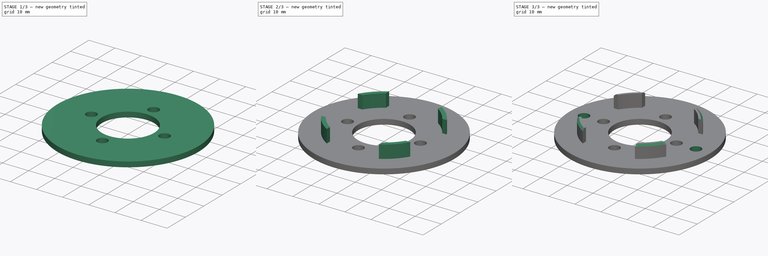
[diagram: build sequence overview — one tinted view per stage of 3, left to right]
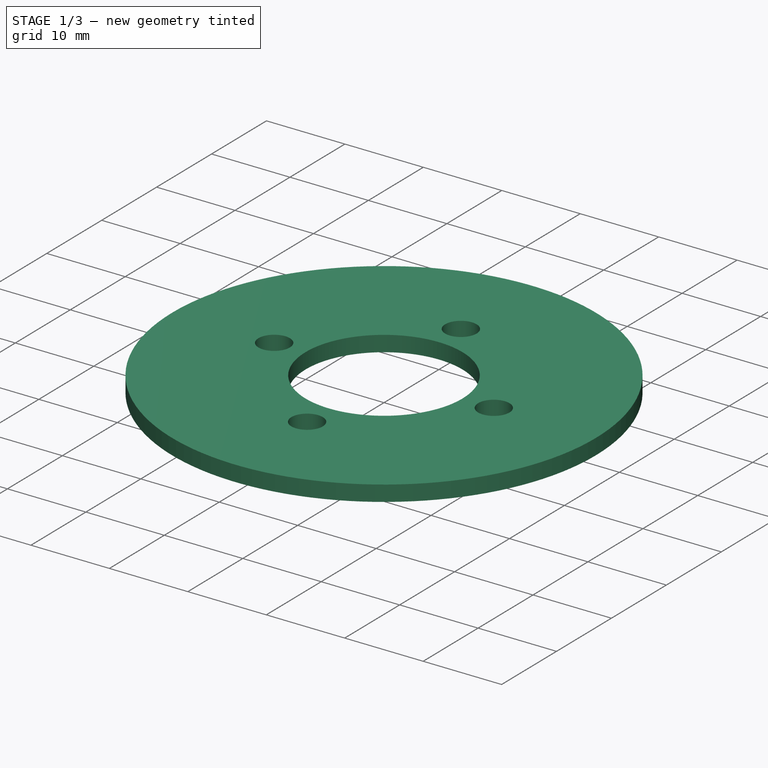
[diagram: stage 1 of 3 — iso view after this stage's code; geometry added in this stage tinted green]
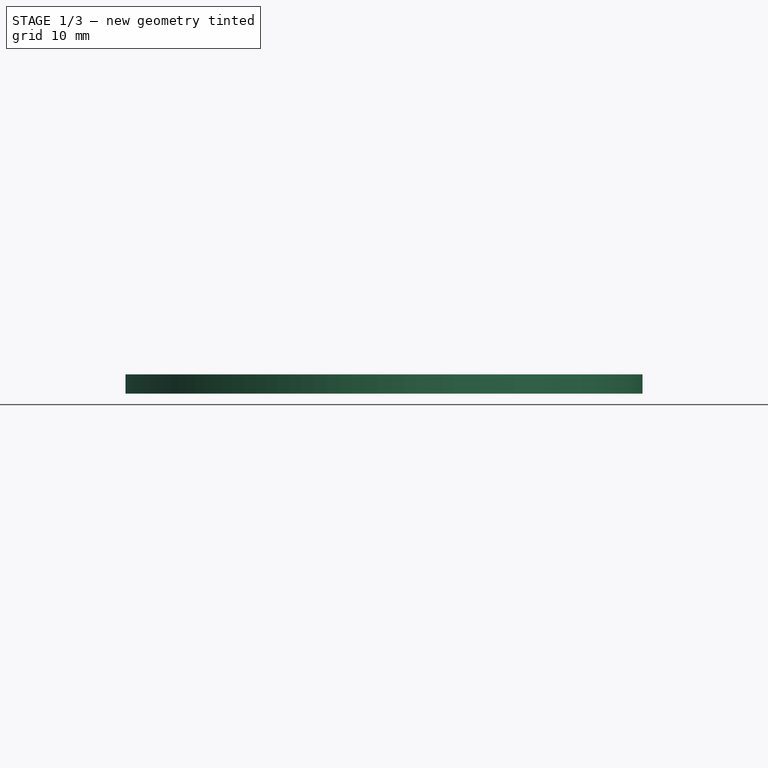
[diagram: stage 1 of 3 — front view after this stage's code; geometry added in this stage tinted green]
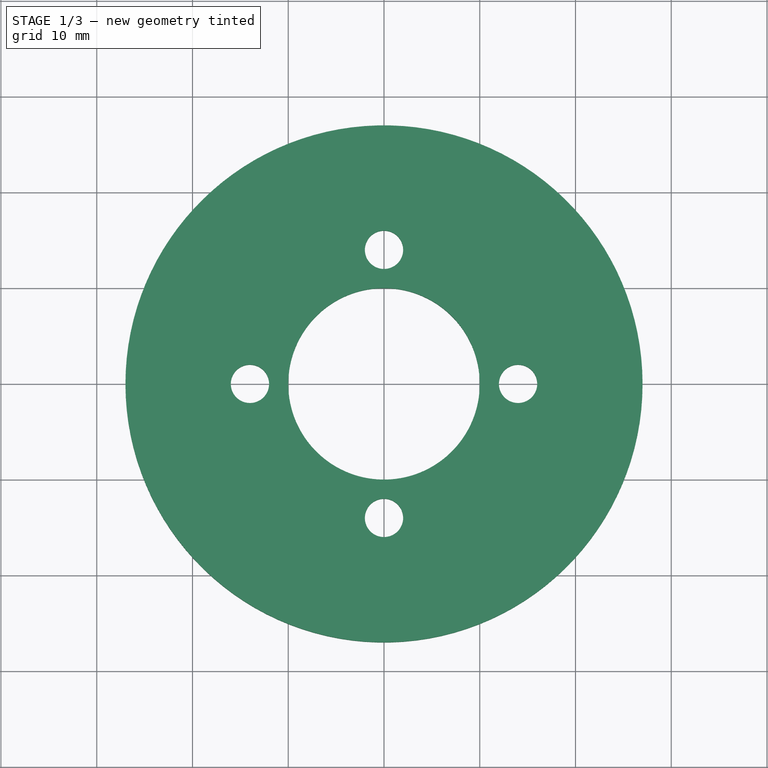
[diagram: stage 1 of 3 — top view after this stage's code; geometry added in this stage tinted green]
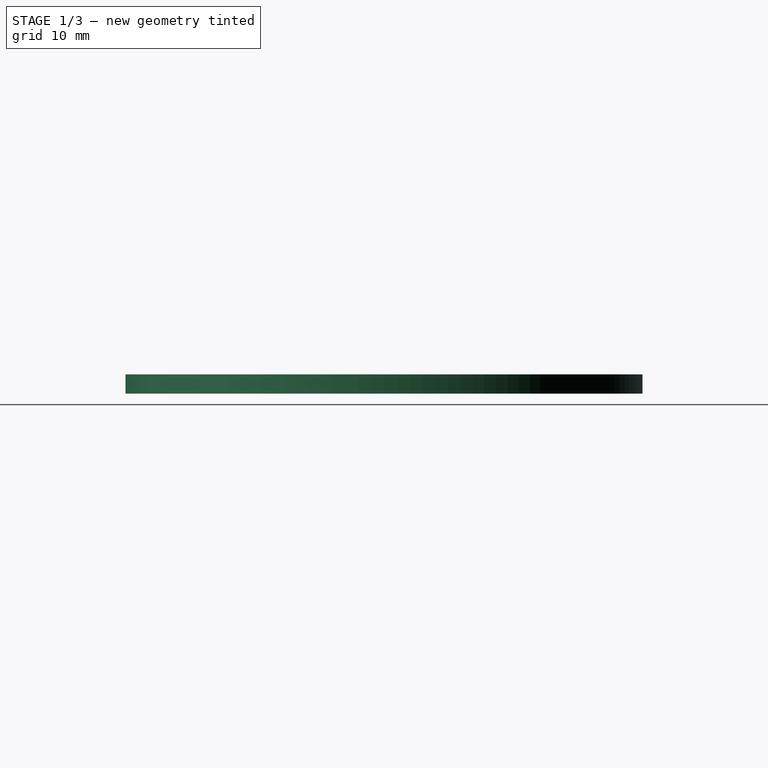
[diagram: stage 1 of 3 — right view after this stage's code; geometry added in this stage tinted green]
FCSTD DOCUMENT  (FreeCAD 0.19R24276 (Git))
Label: support_for_2_gears_14t
License: All rights reserved
LicenseURL: http://en.wikipedia.org/wiki/All_rights_reserved
objects: Sketcher::SketchObject×5, PartDesign::Pocket×3, PartDesign::Pad×2, PartDesign::Chamfer×1, PartDesign::Body×1
note: 18 computed .brp shape members not serialized (recipe doc carries the construction recipe); baked Part::Feature solids carry a one-line shape summary decoded from their .brp

FEATURE [Sketcher::SketchObject] Sketch
  FullyConstrained = true
  MapMode = 5
  Support = -> [XY_Plane]
  sketch-geometry (2):
    g0: Circle CenterX=0 CenterY=0 CenterZ=0 NormalX=0 NormalY=0 NormalZ=1 AngleXU=0 Radius=27
    g1: Circle CenterX=0 CenterY=0 CenterZ=0 NormalX=0 NormalY=0 NormalZ=1 AngleXU=0 Radius=10
  constraints (4):
    c: Coincident(g0,g-1)
    c: Diameter(g0) = 54
    c: Coincident(g1,g0)
    c: Diameter(g1) = 20
FEATURE [PartDesign::Pad] Pad
  Direction = (1,1,1)
  Length = 2
  Length2 = 100
  Profile = -> Sketch
  Type = 0
FEATURE [Sketcher::SketchObject] Sketch001
  FullyConstrained = false
  MapMode = 5
  Placement = pos=(0,0,2) rot=(0,0,1;0rad)
  Support = -> [Pad]
  sketch-geometry (9):
    g0: Circle CenterX=0 CenterY=0 CenterZ=0 NormalX=0 NormalY=0 NormalZ=1 AngleXU=0 Radius=14
    g1: LineSegment StartX=0 StartY=0 StartZ=0 EndX=0 EndY=14 EndZ=0
    g2: LineSegment StartX=0 StartY=0 StartZ=0 EndX=14 EndY=0 EndZ=0
    g3: LineSegment StartX=0 StartY=0 StartZ=0 EndX=0 EndY=-14 EndZ=0
    g4: LineSegment StartX=0 StartY=0 StartZ=0 EndX=-14 EndY=0 EndZ=0
    g5: Circle CenterX=0 CenterY=14 CenterZ=0 NormalX=0 NormalY=0 NormalZ=1 AngleXU=0 Radius=2
    g6: Circle CenterX=14 CenterY=0 CenterZ=0 NormalX=0 NormalY=0 NormalZ=1 AngleXU=0 Radius=2
    g7: Circle CenterX=0 CenterY=-14 CenterZ=0 NormalX=0 NormalY=0 NormalZ=1 AngleXU=0 Radius=2
    g8: Circle CenterX=-14 CenterY=0 CenterZ=0 NormalX=0 NormalY=0 NormalZ=1 AngleXU=0 Radius=2
  constraints (19):
    c: Coincident(g0,g-1)
    c: Diameter(g0) = 28
    c: Coincident(g1,g0)
    c: Coincident(g2,g0)
    c: Coincident(g3,g0)
    c: Coincident(g4,g0)
    c: Vertical(g3)
    c: PointOnObject(g2,g0)
    c: PointOnObject(g1,g0)
    c: PointOnObject(g4,g0)
    c: PointOnObject(g3,g0)
    c: Coincident(g5,g1)
    c: Coincident(g6,g2)
    c: Coincident(g7,g3)
    c: Coincident(g8,g4)
    c: Equal(g8,g5)
    c: Equal(g5,g6)
    c: Equal(g6,g7)
    c: Diameter(g6) = 4
FEATURE [PartDesign::Pocket] Pocket
  BaseFeature = -> Pad
  Length = 5
  Length2 = 100
  Profile = -> Sketch001
  Type = 1
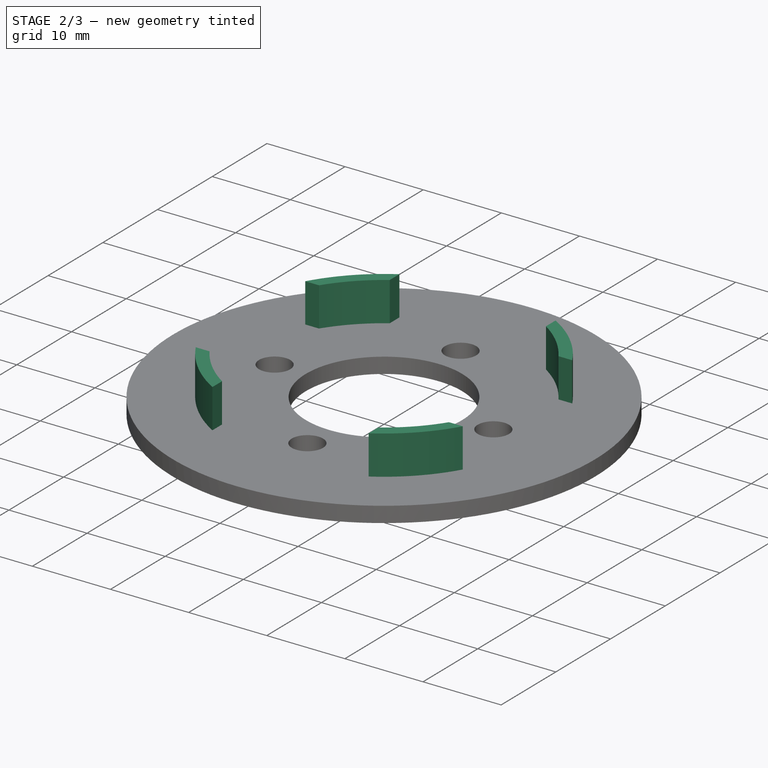
[diagram: stage 2 of 3 — iso view after this stage's code; geometry added in this stage tinted green]
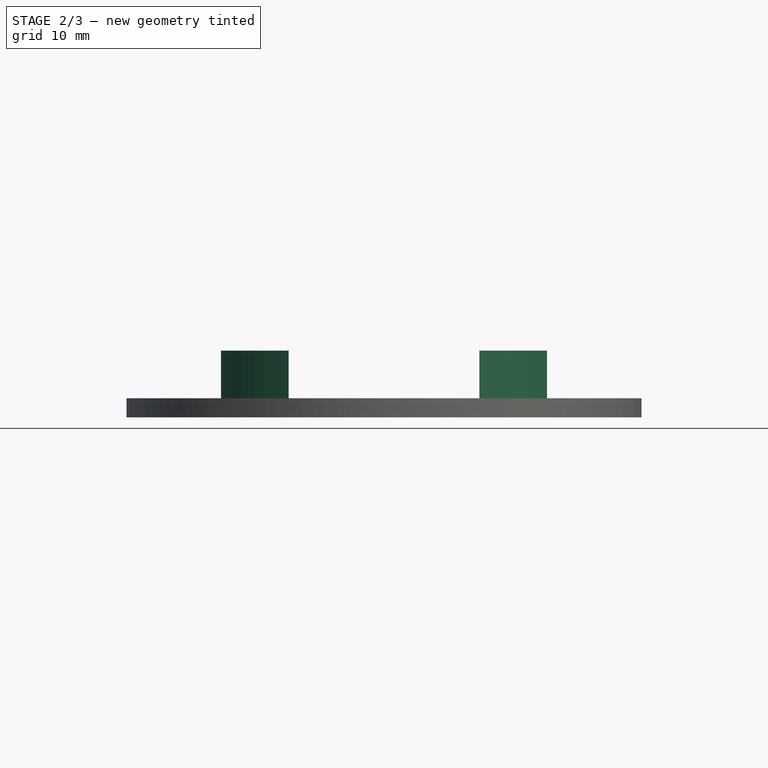
[diagram: stage 2 of 3 — front view after this stage's code; geometry added in this stage tinted green]
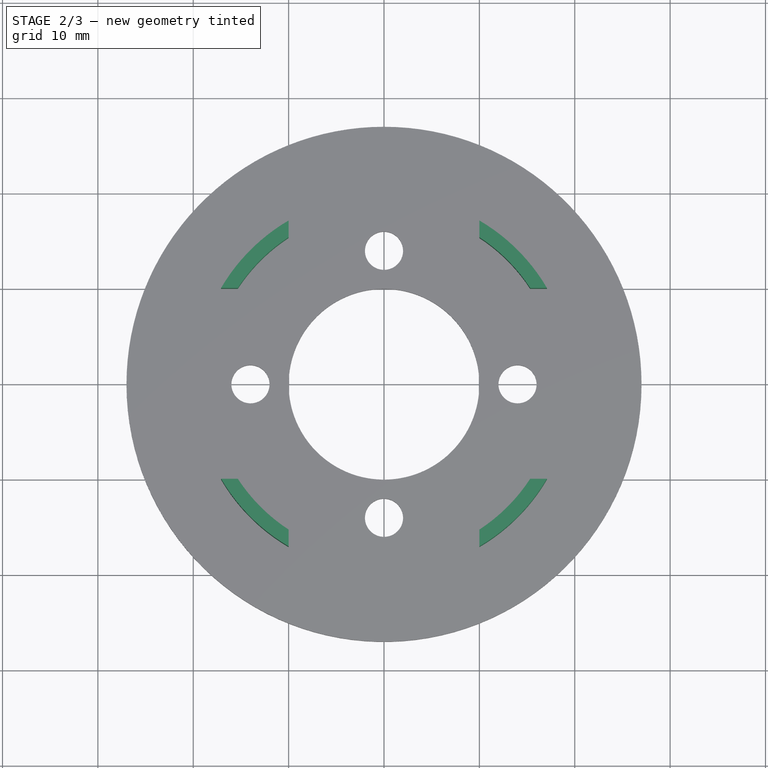
[diagram: stage 2 of 3 — top view after this stage's code; geometry added in this stage tinted green]
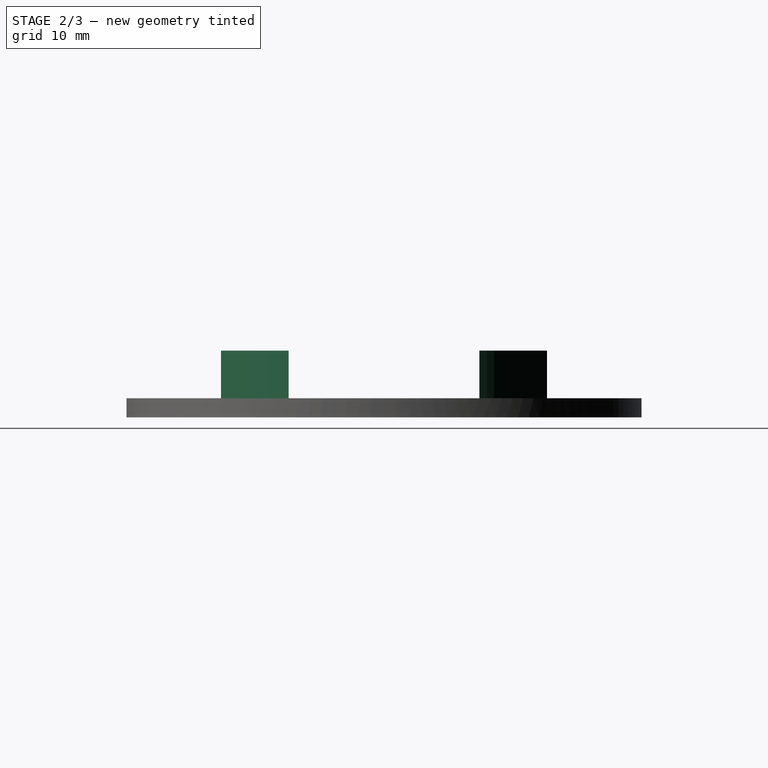
[diagram: stage 2 of 3 — right view after this stage's code; geometry added in this stage tinted green]
FEATURE [Sketcher::SketchObject] Sketch002
  FullyConstrained = true
  MapMode = 5
  Placement = pos=(0,0,2) rot=(0,0,1;0rad)
  Support = -> [Pocket]
  sketch-geometry (2):
    g0: Circle CenterX=0 CenterY=0 CenterZ=0 NormalX=0 NormalY=0 NormalZ=1 AngleXU=0 Radius=19.8
    g1: Circle CenterX=0 CenterY=0 CenterZ=0 NormalX=0 NormalY=0 NormalZ=1 AngleXU=0 Radius=18.3
  constraints (4):
    c: Coincident(g0,g-1)
    c: Diameter(g0) = 39.6
    c: Coincident(g1,g0)
    c: Diameter(g1) = 36.6
FEATURE [PartDesign::Pad] Pad001
  BaseFeature = -> Pocket
  Direction = (1,1,1)
  Length = 5
  Length2 = 100
  Profile = -> Sketch002
  Type = 0
FEATURE [Sketcher::SketchObject] Sketch003
  FullyConstrained = false
  MapMode = 5
  Placement = pos=(0,0,2) rot=(0,0,1;0rad)
  Support = -> [Pad001]
  sketch-geometry (12):
    g0: LineSegment StartX=-49.3761 StartY=10 StartZ=0 EndX=-10 EndY=10 EndZ=0
    g1: LineSegment StartX=49.3761 StartY=10 StartZ=0 EndX=49.3761 EndY=-10 EndZ=0
    g2: LineSegment StartX=49.3761 StartY=-10 StartZ=0 EndX=10 EndY=-10 EndZ=0
    g3: LineSegment StartX=-49.3761 StartY=-10 StartZ=0 EndX=-49.3761 EndY=10 EndZ=0
    g4: LineSegment StartX=-10 StartY=45.0755 StartZ=0 EndX=10 EndY=45.0755 EndZ=0
    g5: LineSegment StartX=10 StartY=45.0755 StartZ=0 EndX=10 EndY=10 EndZ=0
    g6: LineSegment StartX=10 StartY=-45.0755 StartZ=0 EndX=-10 EndY=-45.0755 EndZ=0
    g7: LineSegment StartX=-10 StartY=-45.0755 StartZ=0 EndX=-10 EndY=-10 EndZ=0
    g8: LineSegment StartX=10 StartY=-10 StartZ=0 EndX=10 EndY=-45.0755 EndZ=0
    g9: LineSegment StartX=10 StartY=10 StartZ=0 EndX=49.3761 EndY=10 EndZ=0
    g10: LineSegment StartX=-10 StartY=10 StartZ=0 EndX=-10 EndY=45.0755 EndZ=0
    g11: LineSegment StartX=-10 StartY=-10 StartZ=0 EndX=-49.3761 EndY=-10 EndZ=0
  constraints (28):
    c: Coincident(g9,g1)
    c: Coincident(g1,g2)
    c: Coincident(g11,g3)
    c: Coincident(g3,g0)
    c: Horizontal(g0)
    c: Horizontal(g2)
    c: Vertical(g1)
    c: Vertical(g3)
    c: Symmetric(g0,g1,g-1)
    c: DistanceY(g1,g1) = 20
    c: Coincident(g4,g5)
    c: Coincident(g8,g6)
    c: Coincident(g6,g7)
    c: Coincident(g10,g4)
    c: Horizontal(g4)
    c: Horizontal(g6)
    c: Vertical(g5)
    c: Vertical(g7)
    c: Symmetric(g6,g4,g-1)
    c: DistanceX(g4,g4) = 20
    c: Tangent(g5,g8)
    c: Coincident(g9,g5)
    c: Tangent(g0,g9)
    c: Coincident(g10,g0)
    c: Tangent(g7,g10)
    c: Coincident(g2,g8)
    c: Coincident(g11,g7)
    c: Tangent(g2,g11)
FEATURE [PartDesign::Pocket] Pocket001
  BaseFeature = -> Pad001
  Length = 5
  Length2 = 100
  Profile = -> Sketch003
  Reversed = true
  Type = 0
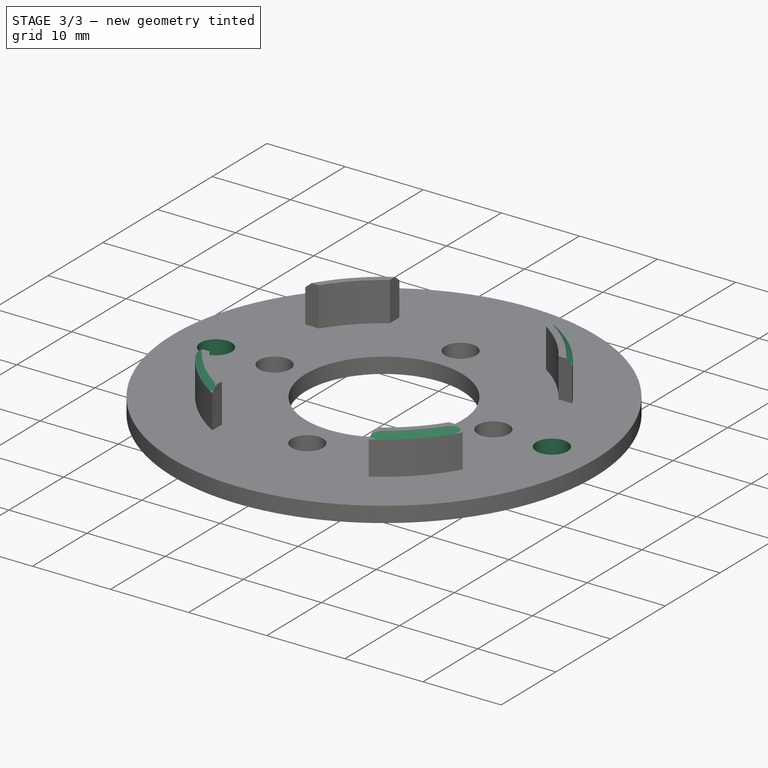
[diagram: stage 3 of 3 — iso view after this stage's code; geometry added in this stage tinted green]
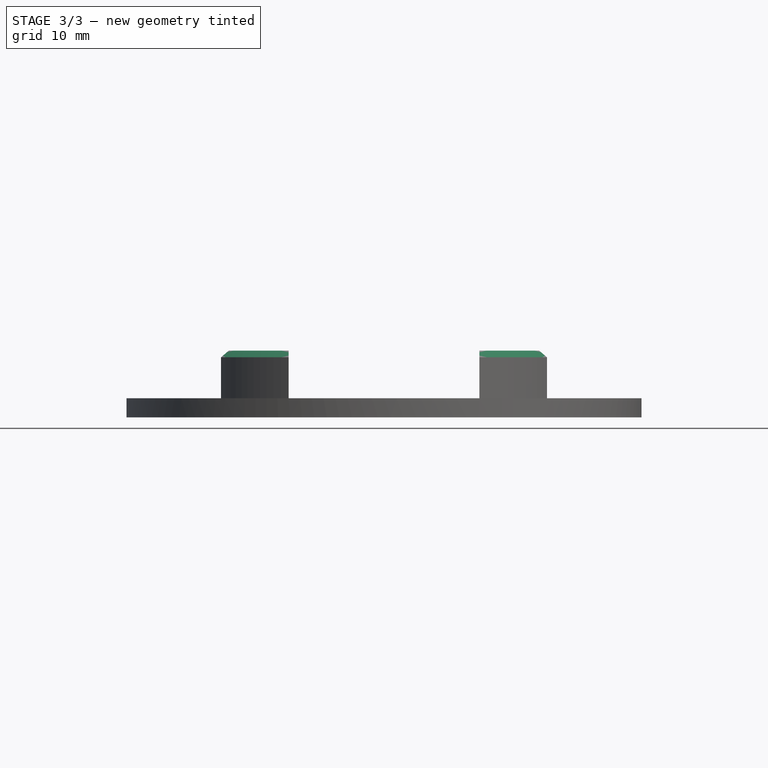
[diagram: stage 3 of 3 — front view after this stage's code; geometry added in this stage tinted green]
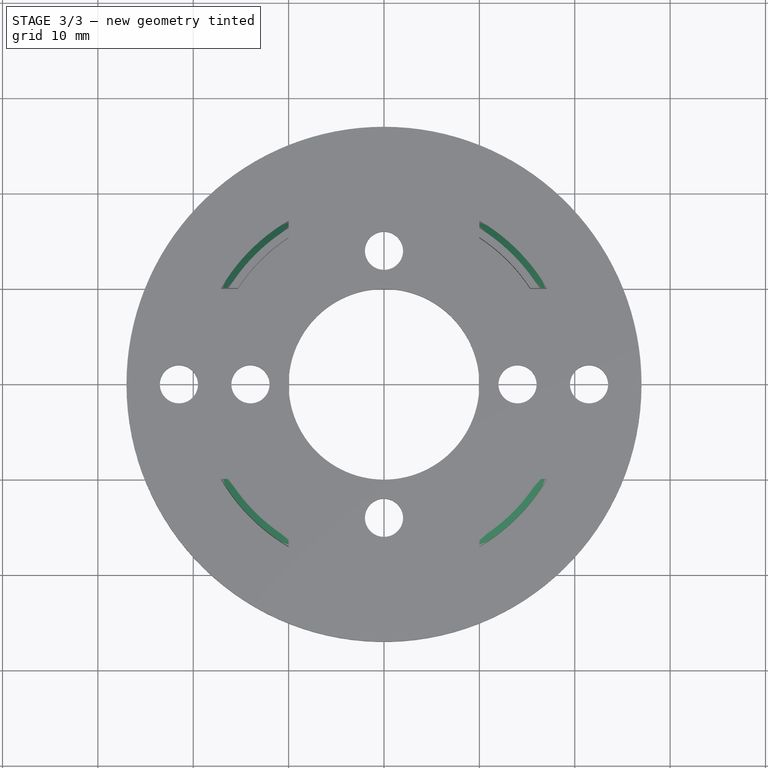
[diagram: stage 3 of 3 — top view after this stage's code; geometry added in this stage tinted green]
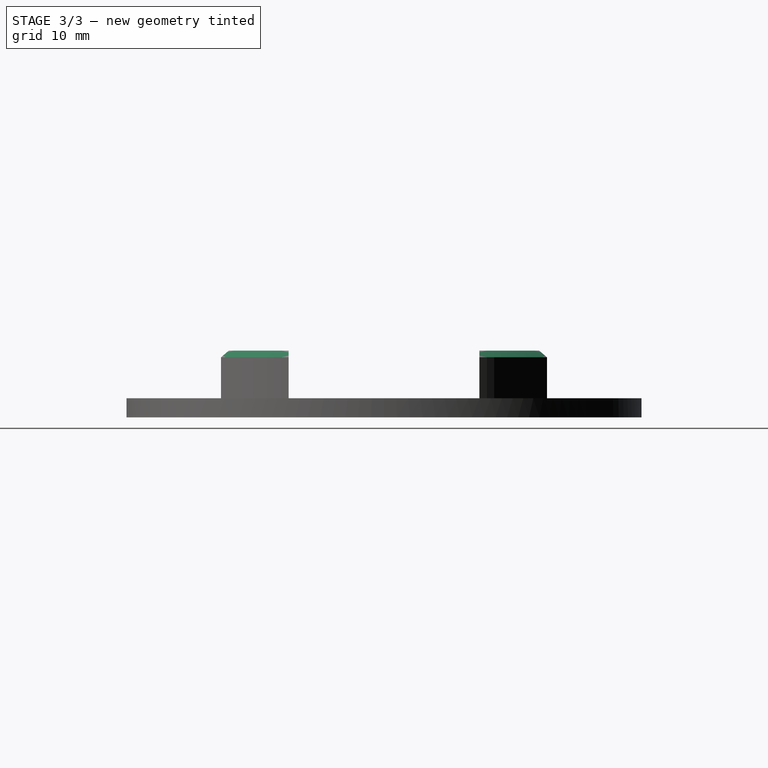
[diagram: stage 3 of 3 — right view after this stage's code; geometry added in this stage tinted green]
FEATURE [Sketcher::SketchObject] Sketch004
  FullyConstrained = false
  MapMode = 5
  Placement = pos=(0,0,2) rot=(0,0,1;0rad)
  Support = -> [Pocket001]
  sketch-geometry (5):
    g0: Circle CenterX=0 CenterY=0 CenterZ=0 NormalX=0 NormalY=0 NormalZ=1 AngleXU=0 Radius=21.5
    g1: LineSegment StartX=0 StartY=0 StartZ=0 EndX=-21.5 EndY=0 EndZ=0
    g2: LineSegment StartX=0 StartY=0 StartZ=0 EndX=21.5 EndY=0 EndZ=0
    g3: Circle CenterX=-21.5 CenterY=0 CenterZ=0 NormalX=0 NormalY=0 NormalZ=1 AngleXU=0 Radius=2
    g4: Circle CenterX=21.5 CenterY=0 CenterZ=0 NormalX=0 NormalY=0 NormalZ=1 AngleXU=0 Radius=2
  constraints (11):
    c: Diameter(g0) = 43
    c: Coincident(g1,g0)
    c: Horizontal(g1)
    c: Coincident(g2,g0)
    c: Horizontal(g2)
    c: PointOnObject(g1,g0)
    c: PointOnObject(g2,g0)
    c: Coincident(g3,g1)
    c: Coincident(g4,g2)
    c: Equal(g4,g3)
    c: Diameter(g4) = 4
FEATURE [PartDesign::Pocket] Pocket002
  BaseFeature = -> Pocket001
  Length = 5
  Length2 = 100
  Profile = -> Sketch004
  Type = 1
FEATURE [PartDesign::Chamfer] Chamfer
  Angle = 45
  Base = -> Pocket002 [Edge60,Edge66,Edge72,Edge78]
  BaseFeature = -> Pocket002
  ChamferType = 0
  FlipDirection = false
  Size = 0.7
  Size2 = 1
  SupportTransform = false
FEATURE [PartDesign::Body] Body
  Group = -> [Sketch,Pad,Sketch001,Pocket,Sketch002,Pad001,Sketch003,Pocket001,Sketch004,Pocket002,Chamfer]
  Origin = -> Origin
  Tip = -> Chamfer
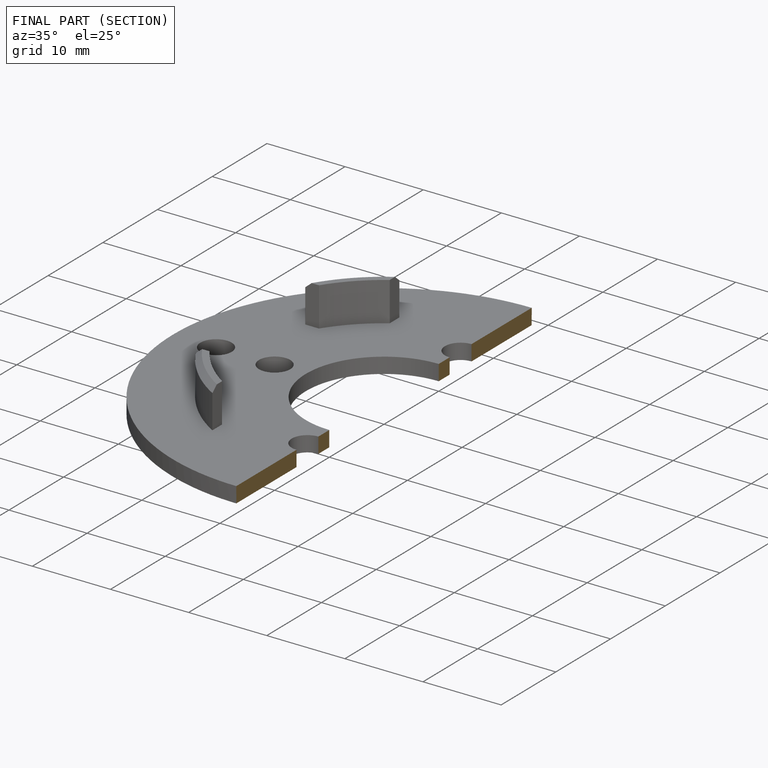
[diagram: finished part — half-section view (interior)]
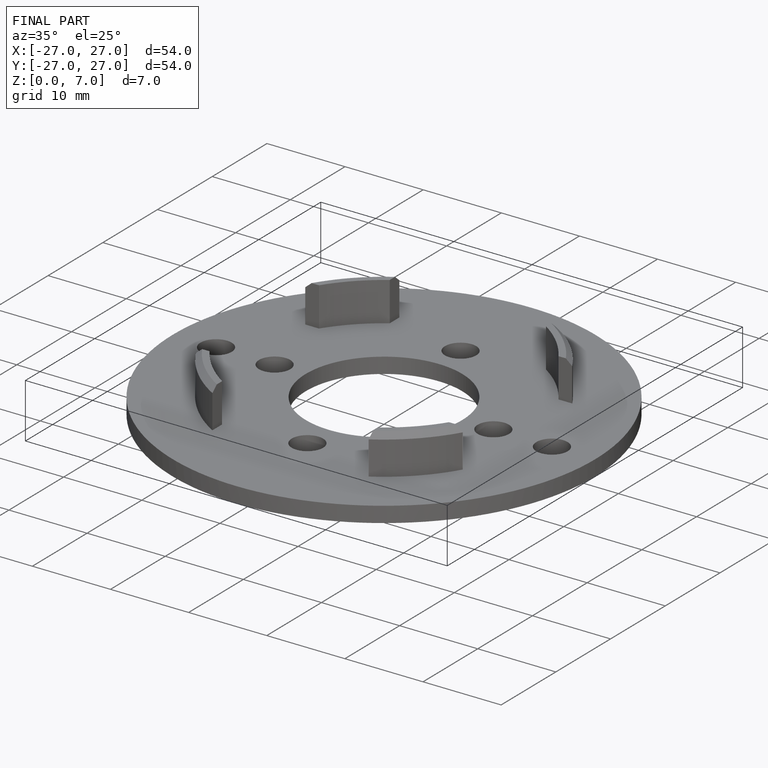
[diagram: finished part — iso view with bounding-box wireframe]
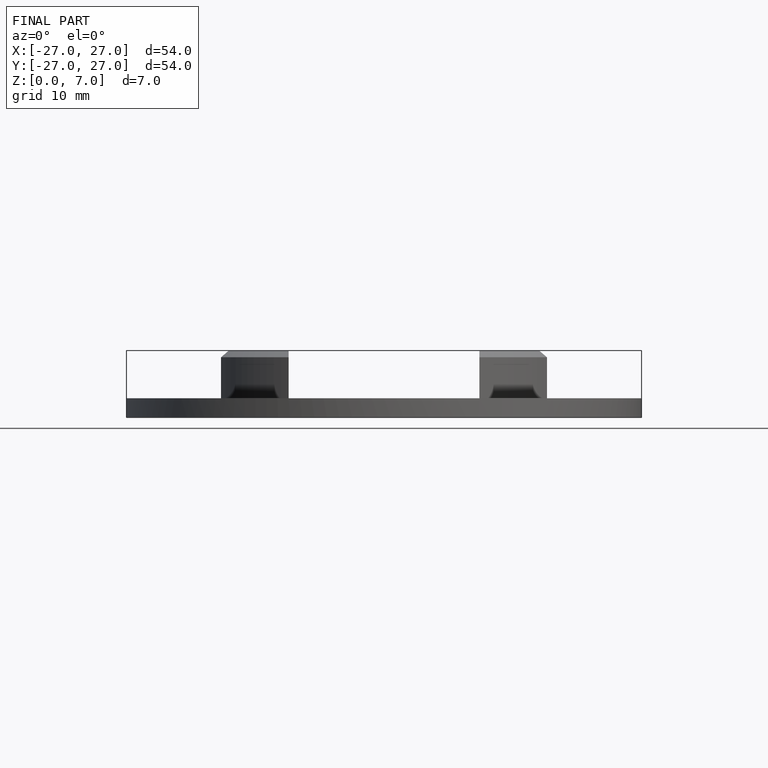
[diagram: finished part — front view with bounding-box wireframe]
